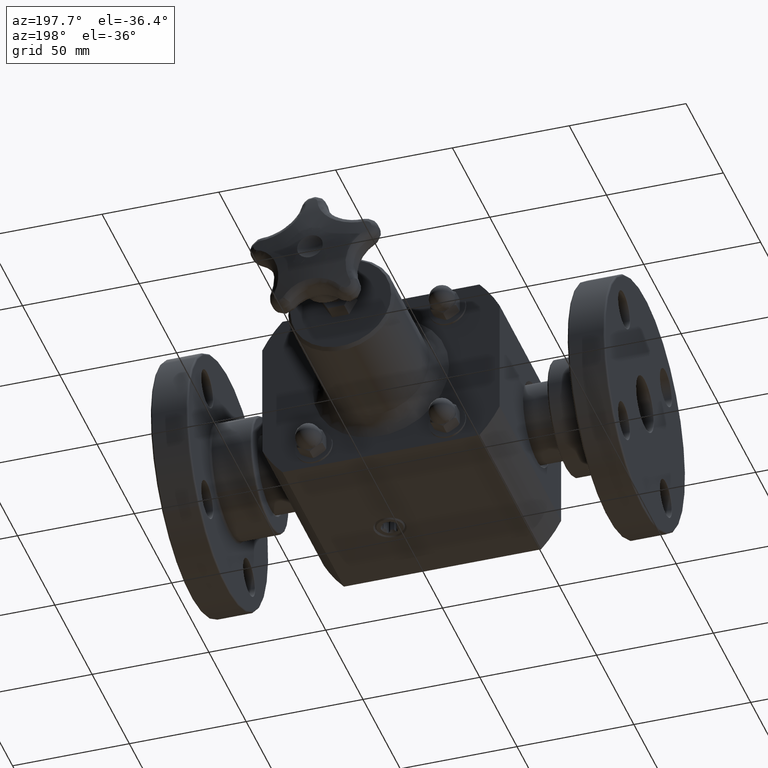
[diagram: clean part render]
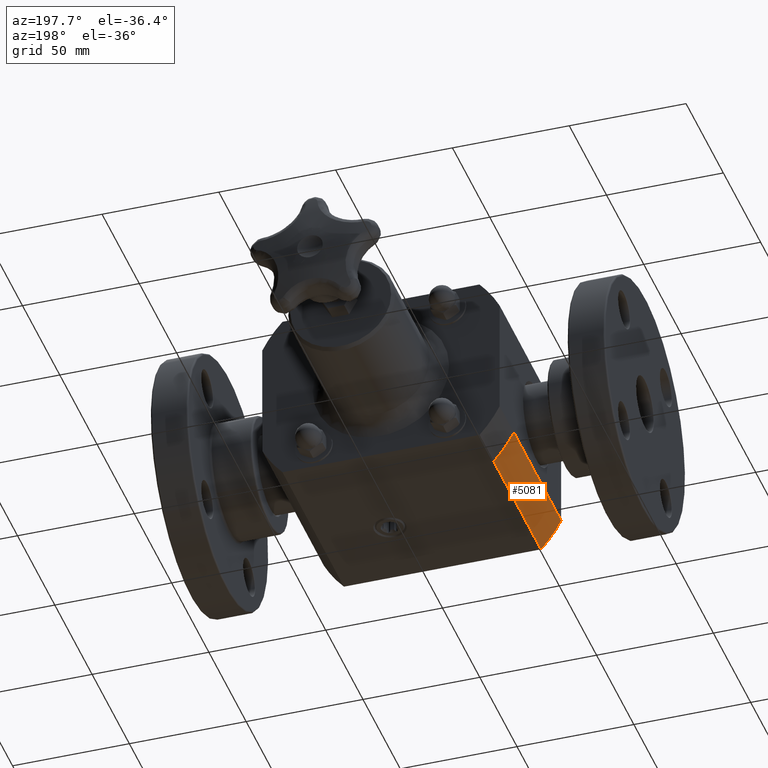
[diagram: same view with one face highlighted and labeled with its STEP entity id]
A machine part, auxiliary view. The second image highlights one B-rep face of the part: STEP entity #5081.
In plain terms, the highlighted cylindrical surface (partial cylindrical patch) has radius 56.8452 mm, axis along (-0, 1, 0).
Its self-contained STEP definition (entity closure, byte-faithful):
#4469=CARTESIAN_POINT('',(-1.660916614403023,2.500000000000000,-1.500000000000000));
#4470=VERTEX_POINT('',#4469);
#4477=CARTESIAN_POINT('',(-2.0,2.500000000000000,-1.004312700308026));
#4478=VERTEX_POINT('',#4477);
#4479=CARTESIAN_POINT('',(-1.445224E-044,2.500000000000000,0.0));
#4480=DIRECTION('',(3.183982E-045,-1.0,2.875505E-045));
#4481=DIRECTION('',(0.742143259340046,4.290253E-045,0.670241286863271));
#4482=AXIS2_PLACEMENT_3D('',#4479,#4480,#4481);
#4483=CIRCLE('',#4482,2.238000000000000);
#4484=EDGE_CURVE('',#4478,#4470,#4483,.T.);
#4602=CARTESIAN_POINT('',(-1.660916614403023,-9.601586E-045,-1.500000000000000));
#4603=VERTEX_POINT('',#4602);
#4610=CARTESIAN_POINT('',(-1.660916614403023,-9.601586E-045,-1.500000000000000));
#4611=DIRECTION('',(0.0,1.0,0.0));
#4612=VECTOR('',#4611,2.500000000000000);
#4613=LINE('',#4610,#4612);
#4614=EDGE_CURVE('',#4603,#4470,#4613,.T.);
#4677=CARTESIAN_POINT('',(-2.0,-1.156179E-044,-1.004312700308026));
#4678=VERTEX_POINT('',#4677);
#4679=CARTESIAN_POINT('',(-2.0,-1.156179E-044,-1.004312700308026));
#4680=DIRECTION('',(0.0,1.0,0.0));
#4681=VECTOR('',#4680,2.500000000000000);
#4682=LINE('',#4679,#4681);
#4683=EDGE_CURVE('',#4678,#4478,#4682,.T.);
#5064=CARTESIAN_POINT('',(0.0,0.0,0.0));
#5065=DIRECTION('',(-5.780896E-045,1.0,0.0));
#5066=DIRECTION('',(0.742143259340046,4.290253E-045,0.670241286863271));
#5067=AXIS2_PLACEMENT_3D('',#5064,#5065,#5066);
#5068=CYLINDRICAL_SURFACE('',#5067,2.238000000000000);
#5069=ORIENTED_EDGE('',*,*,#4484,.T.);
#5070=ORIENTED_EDGE('',*,*,#4614,.F.);
#5071=CARTESIAN_POINT('',(0.0,0.0,0.0));
#5072=DIRECTION('',(3.183982E-045,-1.0,2.875505E-045));
#5073=DIRECTION('',(0.742143259340046,4.290253E-045,0.670241286863271));
#5074=AXIS2_PLACEMENT_3D('',#5071,#5072,#5073);
#5075=CIRCLE('',#5074,2.238000000000000);
#5076=EDGE_CURVE('',#4678,#4603,#5075,.T.);
#5077=ORIENTED_EDGE('',*,*,#5076,.F.);
#5078=ORIENTED_EDGE('',*,*,#4683,.T.);
#5079=EDGE_LOOP('',(#5069,#5070,#5077,#5078));
#5080=FACE_OUTER_BOUND('',#5079,.T.);
#5081=ADVANCED_FACE('',(#5080),#5068,.T.);